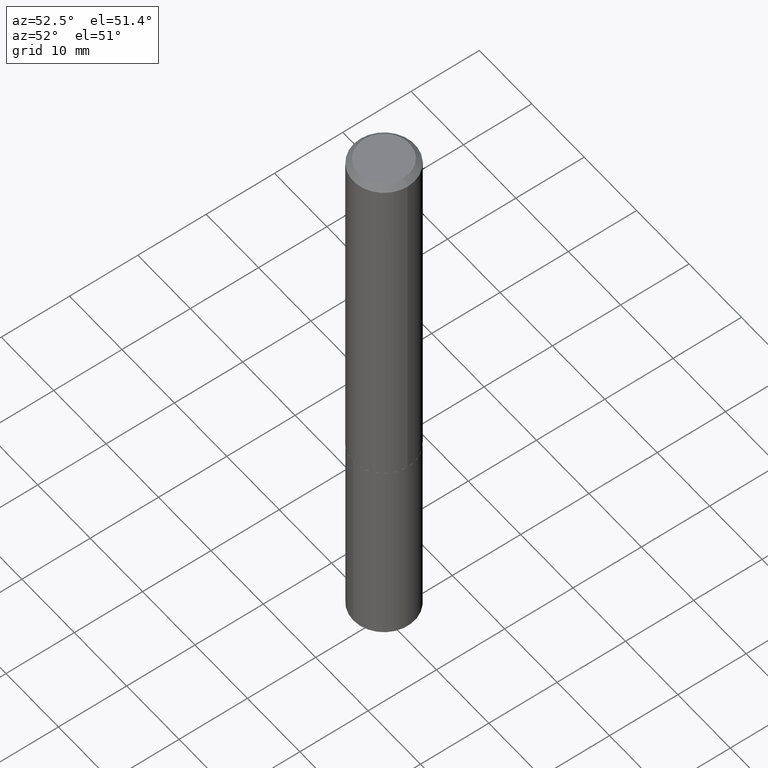
[diagram: clean part render]
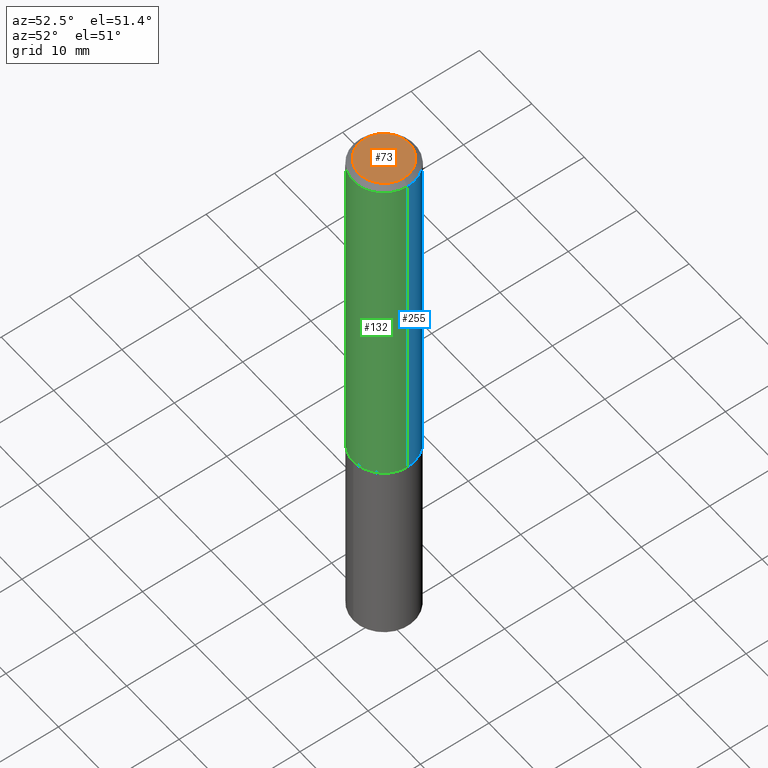
[diagram: same view with three faces highlighted in distinct colors, each labeled with its STEP entity id]
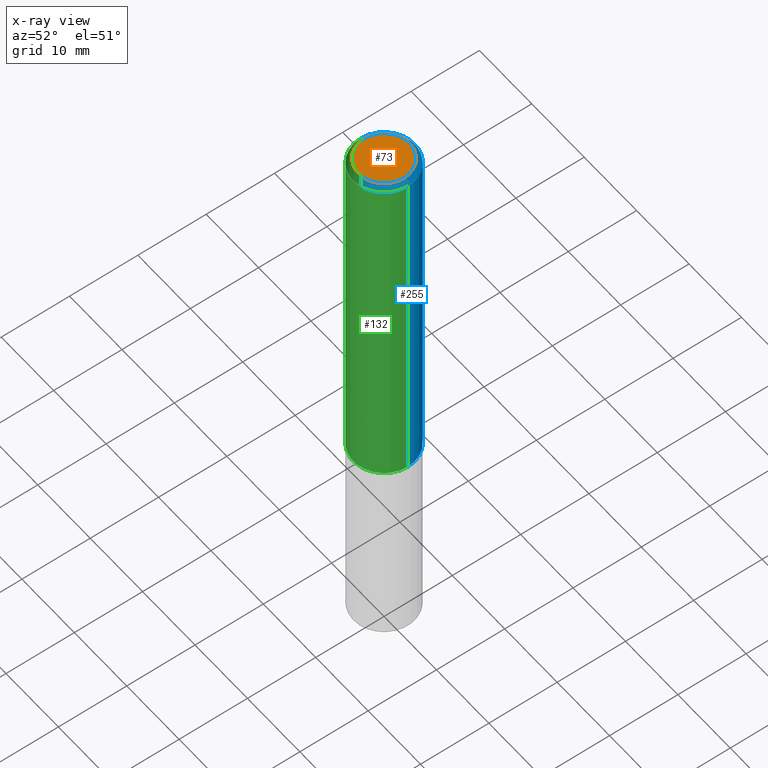
[diagram: x-ray of the same camera — body ghosted, the three highlighted faces saturated]
A machine part, auxiliary view with three faces highlighted in distinct colors.
The next image is the same camera in x-ray (body ghosted, the three faces saturated) — at least one of them is partly hidden behind the body in this view.
Their STEP definitions:

[orange] entity #73 — the highlighted planar face has unit normal (0, -0, -1).
#1 = DIRECTION ( 'NONE',  ( 2.438088387897960049E-29, -3.491481338843145188E-15, -1.000000000000000000 ) ) ;
#27 = CARTESIAN_POINT ( 'NONE',  ( -2.949913012720688878E-47, 4.211693974208522336E-33, 1.206277097160143859E-18 ) ) ;
#57 = VERTEX_POINT ( 'NONE', #208 ) ;
#58 = PLANE ( 'NONE',  #72 ) ;
#61 = DIRECTION ( 'NONE',  ( -2.445468806185136597E-29, 3.491481338843145583E-15, 1.000000000000000000 ) ) ;
#65 = DIRECTION ( 'NONE',  ( -2.445468806185136597E-29, 3.491481338843145583E-15, 1.000000000000000000 ) ) ;
#72 = AXIS2_PLACEMENT_3D ( 'NONE', #111, #1, #240 ) ;
#73 = ADVANCED_FACE ( 'NONE', ( #332 ), #58, .F. ) ;
#95 = EDGE_CURVE ( 'NONE', #57, #317, #113, .T. ) ;
#109 = ORIENTED_EDGE ( 'NONE', *, *, #215, .T. ) ;
#111 = CARTESIAN_POINT ( 'NONE',  ( -1.474956506360344439E-47, 2.105846987104261168E-33, 6.031385485800719294E-19 ) ) ;
#113 = CIRCLE ( 'NONE', #126, 0.1459000000000000019 ) ;
#126 = AXIS2_PLACEMENT_3D ( 'NONE', #27, #61, #297 ) ;
#152 = CARTESIAN_POINT ( 'NONE',  ( -2.949913012720688878E-47, 4.211693974208522336E-33, 1.206277097160143859E-18 ) ) ;
#180 = DIRECTION ( 'NONE',  ( 1.000000000000000000, -6.982962677686266711E-15, 4.876233736924995224E-29 ) ) ;
#208 = CARTESIAN_POINT ( 'NONE',  ( 0.1459000000000000019, -1.162696335009471270E-15, 1.206277097167771312E-18 ) ) ;
#215 = EDGE_CURVE ( 'NONE', #317, #57, #220, .T. ) ;
#220 = CIRCLE ( 'NONE', #242, 0.1459000000000000019 ) ;
#225 = ORIENTED_EDGE ( 'NONE', *, *, #95, .T. ) ;
#240 = DIRECTION ( 'NONE',  ( -1.000000000000000000, 6.982962677686265922E-15, -4.876176775795935793E-29 ) ) ;
#242 = AXIS2_PLACEMENT_3D ( 'NONE', #152, #65, #180 ) ;
#289 = CARTESIAN_POINT ( 'NONE',  ( -0.1459000000000000019, 1.073368650593849729E-15, 1.206277097152828214E-18 ) ) ;
#297 = DIRECTION ( 'NONE',  ( 1.000000000000000000, -6.982962677686266711E-15, 4.876233736924995224E-29 ) ) ;
#317 = VERTEX_POINT ( 'NONE', #289 ) ;
#330 = EDGE_LOOP ( 'NONE', ( #109, #225 ) ) ;
#332 = FACE_OUTER_BOUND ( 'NONE', #330, .T. ) ;

[blue] entity #255 — the highlighted cylindrical surface (partial cylindrical patch) has radius 4.4996 mm, axis along (-0, 0, 1).
#9 = LINE ( 'NONE', #312, #281 ) ;
#10 = AXIS2_PLACEMENT_3D ( 'NONE', #277, #369, #184 ) ;
#12 = ORIENTED_EDGE ( 'NONE', *, *, #304, .T. ) ;
#14 = LINE ( 'NONE', #128, #127 ) ;
#41 = ORIENTED_EDGE ( 'NONE', *, *, #185, .F. ) ;
#54 = CIRCLE ( 'NONE', #10, 0.1771500000000000019 ) ;
#63 = DIRECTION ( 'NONE',  ( -2.445468806185136597E-29, 3.491481338843145583E-15, 1.000000000000000000 ) ) ;
#68 = DIRECTION ( 'NONE',  ( -2.445468806185136877E-29, 3.491481338843145188E-15, 1.000000000000000000 ) ) ;
#74 = ORIENTED_EDGE ( 'NONE', *, *, #287, .F. ) ;
#79 = DIRECTION ( 'NONE',  ( 1.000000000000000000, -6.982962677686263555E-15, 0.000000000000000000 ) ) ;
#81 = CIRCLE ( 'NONE', #135, 0.1771500000000002240 ) ;
#92 = CARTESIAN_POINT ( 'NONE',  ( -0.1771500000000002240, -6.024852764561670589E-15, -2.086100000000000954 ) ) ;
#107 = CARTESIAN_POINT ( 'NONE',  ( 5.101492476582815716E-29, -7.283579220960688279E-15, -2.086100000000000954 ) ) ;
#112 = EDGE_CURVE ( 'NONE', #190, #286, #81, .T. ) ;
#117 = CYLINDRICAL_SURFACE ( 'NONE', #376, 0.1771500000000001129 ) ;
#127 = VECTOR ( 'NONE', #315, 39.37007874015748143 ) ;
#128 = CARTESIAN_POINT ( 'NONE',  ( -0.1771500000000001129, 1.258726456399018282E-15, -8.713893512386570931E-30 ) ) ;
#135 = AXIS2_PLACEMENT_3D ( 'NONE', #107, #139, #79 ) ;
#139 = DIRECTION ( 'NONE',  ( -2.445468806185136597E-29, 3.491481338843145583E-15, 1.000000000000000000 ) ) ;
#170 = VERTEX_POINT ( 'NONE', #339 ) ;
#184 = DIRECTION ( 'NONE',  ( 1.000000000000000000, -6.982962677686266711E-15, 0.000000000000000000 ) ) ;
#185 = EDGE_CURVE ( 'NONE', #190, #290, #9, .T. ) ;
#190 = VERTEX_POINT ( 'NONE', #314 ) ;
#246 = CARTESIAN_POINT ( 'NONE',  ( 0.1771500000000000019, -1.346140630190971297E-15, -0.03125000000000021511 ) ) ;
#255 = ADVANCED_FACE ( 'NONE', ( #311 ), #117, .T. ) ;
#258 = ORIENTED_EDGE ( 'NONE', *, *, #112, .T. ) ;
#271 = CARTESIAN_POINT ( 'NONE',  ( 0.000000000000000000, 0.000000000000000000, 0.000000000000000000 ) ) ;
#277 = CARTESIAN_POINT ( 'NONE',  ( 7.642090019328603538E-31, -1.091087918388490390E-16, -0.03125000000000021511 ) ) ;
#281 = VECTOR ( 'NONE', #68, 39.37007874015748143 ) ;
#286 = VERTEX_POINT ( 'NONE', #92 ) ;
#287 = EDGE_CURVE ( 'NONE', #290, #170, #54, .T. ) ;
#290 = VERTEX_POINT ( 'NONE', #246 ) ;
#304 = EDGE_CURVE ( 'NONE', #286, #170, #14, .T. ) ;
#311 = FACE_OUTER_BOUND ( 'NONE', #390, .T. ) ;
#312 = CARTESIAN_POINT ( 'NONE',  ( 0.1771500000000001129, -1.237031838352122986E-15, 8.638147158322505565E-30 ) ) ;
#314 = CARTESIAN_POINT ( 'NONE',  ( 0.1771500000000002240, -8.520611059312812251E-15, -2.086100000000000954 ) ) ;
#315 = DIRECTION ( 'NONE',  ( -2.445468806185136877E-29, 3.491481338843145188E-15, 1.000000000000000000 ) ) ;
#339 = CARTESIAN_POINT ( 'NONE',  ( -0.1771500000000000019, -2.437617550000750605E-15, -0.03125000000000021511 ) ) ;
#369 = DIRECTION ( 'NONE',  ( -2.445468806185136597E-29, 3.491481338843145583E-15, 1.000000000000000000 ) ) ;
#370 = DIRECTION ( 'NONE',  ( 1.000000000000000000, -6.982962677686266711E-15, 4.876176775795935793E-29 ) ) ;
#376 = AXIS2_PLACEMENT_3D ( 'NONE', #271, #63, #370 ) ;
#390 = EDGE_LOOP ( 'NONE', ( #258, #12, #74, #41 ) ) ;

[green] entity #132 — the highlighted cylindrical surface (partial cylindrical patch) has radius 4.4996 mm, axis along (-0, 0, 1).
#2 = ORIENTED_EDGE ( 'NONE', *, *, #185, .T. ) ;
#4 = DIRECTION ( 'NONE',  ( -2.445468806185136597E-29, 3.491481338843145583E-15, 1.000000000000000000 ) ) ;
#9 = LINE ( 'NONE', #312, #281 ) ;
#14 = LINE ( 'NONE', #128, #127 ) ;
#16 = ORIENTED_EDGE ( 'NONE', *, *, #316, .F. ) ;
#18 = DIRECTION ( 'NONE',  ( 1.000000000000000000, -6.982962677686266711E-15, 0.000000000000000000 ) ) ;
#36 = DIRECTION ( 'NONE',  ( -2.445468806185136597E-29, 3.491481338843145583E-15, 1.000000000000000000 ) ) ;
#38 = CARTESIAN_POINT ( 'NONE',  ( 0.000000000000000000, 0.000000000000000000, 0.000000000000000000 ) ) ;
#64 = CARTESIAN_POINT ( 'NONE',  ( 5.101492476582815716E-29, -7.283579220960688279E-15, -2.086100000000000954 ) ) ;
#68 = DIRECTION ( 'NONE',  ( -2.445468806185136877E-29, 3.491481338843145188E-15, 1.000000000000000000 ) ) ;
#71 = CIRCLE ( 'NONE', #296, 0.1771500000000000019 ) ;
#91 = CYLINDRICAL_SURFACE ( 'NONE', #310, 0.1771500000000001129 ) ;
#92 = CARTESIAN_POINT ( 'NONE',  ( -0.1771500000000002240, -6.024852764561670589E-15, -2.086100000000000954 ) ) ;
#127 = VECTOR ( 'NONE', #315, 39.37007874015748143 ) ;
#128 = CARTESIAN_POINT ( 'NONE',  ( -0.1771500000000001129, 1.258726456399018282E-15, -8.713893512386570931E-30 ) ) ;
#132 = ADVANCED_FACE ( 'NONE', ( #305 ), #91, .T. ) ;
#133 = EDGE_LOOP ( 'NONE', ( #353, #301, #2, #16 ) ) ;
#149 = DIRECTION ( 'NONE',  ( 1.000000000000000000, -6.982962677686263555E-15, 0.000000000000000000 ) ) ;
#170 = VERTEX_POINT ( 'NONE', #339 ) ;
#185 = EDGE_CURVE ( 'NONE', #190, #290, #9, .T. ) ;
#186 = CARTESIAN_POINT ( 'NONE',  ( 7.642090019328603538E-31, -1.091087918388490390E-16, -0.03125000000000021511 ) ) ;
#190 = VERTEX_POINT ( 'NONE', #314 ) ;
#204 = AXIS2_PLACEMENT_3D ( 'NONE', #64, #36, #149 ) ;
#246 = CARTESIAN_POINT ( 'NONE',  ( 0.1771500000000000019, -1.346140630190971297E-15, -0.03125000000000021511 ) ) ;
#272 = EDGE_CURVE ( 'NONE', #286, #190, #352, .T. ) ;
#278 = DIRECTION ( 'NONE',  ( 1.000000000000000000, -6.982962677686266711E-15, 4.876176775795935793E-29 ) ) ;
#281 = VECTOR ( 'NONE', #68, 39.37007874015748143 ) ;
#286 = VERTEX_POINT ( 'NONE', #92 ) ;
#290 = VERTEX_POINT ( 'NONE', #246 ) ;
#296 = AXIS2_PLACEMENT_3D ( 'NONE', #186, #371, #18 ) ;
#301 = ORIENTED_EDGE ( 'NONE', *, *, #272, .T. ) ;
#304 = EDGE_CURVE ( 'NONE', #286, #170, #14, .T. ) ;
#305 = FACE_OUTER_BOUND ( 'NONE', #133, .T. ) ;
#310 = AXIS2_PLACEMENT_3D ( 'NONE', #38, #4, #278 ) ;
#312 = CARTESIAN_POINT ( 'NONE',  ( 0.1771500000000001129, -1.237031838352122986E-15, 8.638147158322505565E-30 ) ) ;
#314 = CARTESIAN_POINT ( 'NONE',  ( 0.1771500000000002240, -8.520611059312812251E-15, -2.086100000000000954 ) ) ;
#315 = DIRECTION ( 'NONE',  ( -2.445468806185136877E-29, 3.491481338843145188E-15, 1.000000000000000000 ) ) ;
#316 = EDGE_CURVE ( 'NONE', #170, #290, #71, .T. ) ;
#339 = CARTESIAN_POINT ( 'NONE',  ( -0.1771500000000000019, -2.437617550000750605E-15, -0.03125000000000021511 ) ) ;
#352 = CIRCLE ( 'NONE', #204, 0.1771500000000002240 ) ;
#353 = ORIENTED_EDGE ( 'NONE', *, *, #304, .F. ) ;
#371 = DIRECTION ( 'NONE',  ( -2.445468806185136597E-29, 3.491481338843145583E-15, 1.000000000000000000 ) ) ;